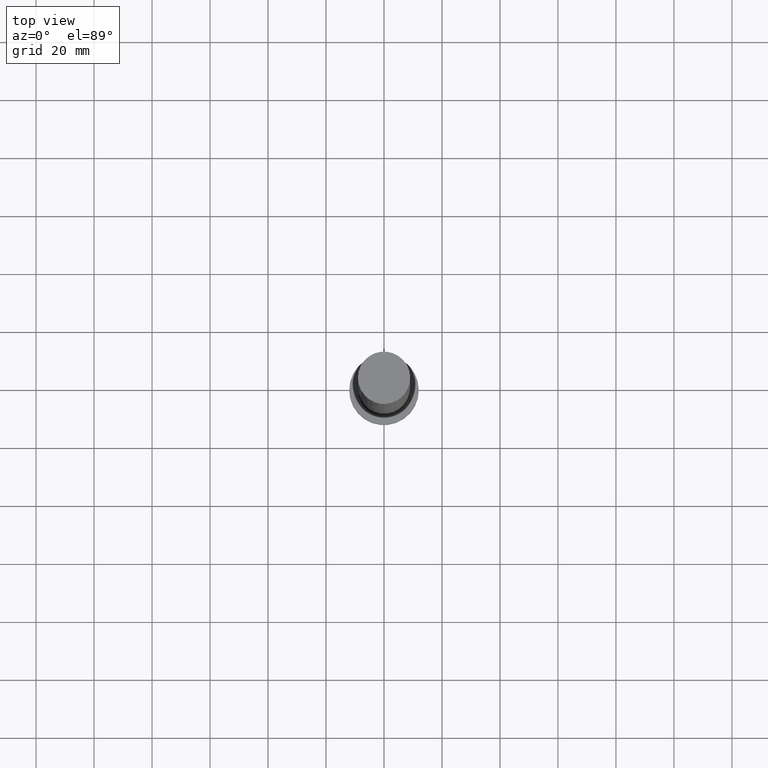
[diagram: clean part render]
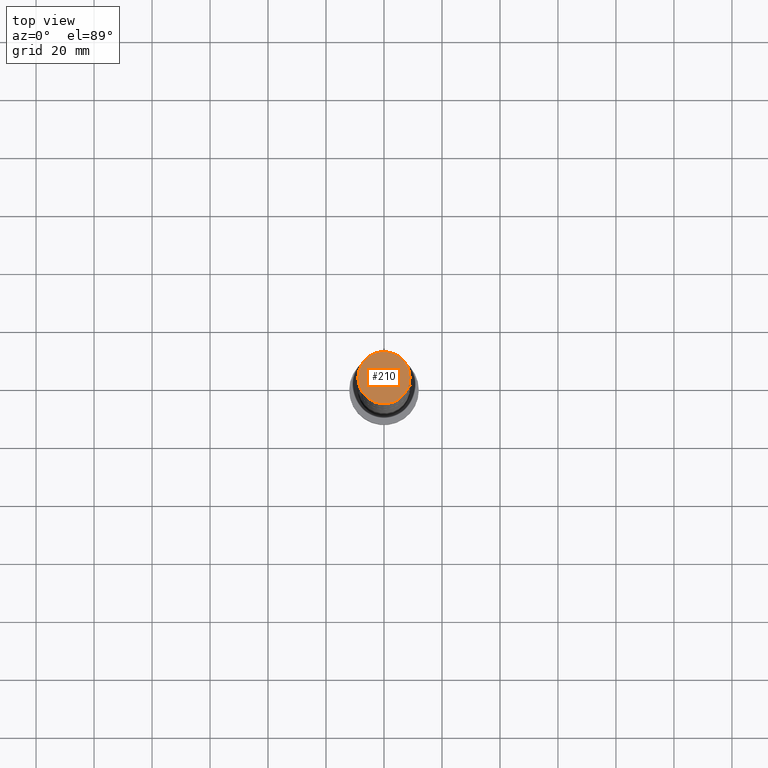
[diagram: same view with one face highlighted and labeled with its STEP entity id]
A machine part, top view. The second image highlights one B-rep face of the part: STEP entity #210.
In plain terms, the highlighted planar face has unit normal (0, 0, 1).
Its self-contained STEP definition (entity closure, byte-faithful):
#32 = DIRECTION ( 'NONE',  ( 0.000000000000000000, 0.000000000000000000, 1.000000000000000000 ) ) ;
#149 = AXIS2_PLACEMENT_3D ( 'NONE', #1519, #696, #1276 ) ;
#173 = DIRECTION ( 'NONE',  ( 0.000000000000000000, 0.000000000000000000, 1.000000000000000000 ) ) ;
#210 = ADVANCED_FACE ( 'NONE', ( #462 ), #1430, .T. ) ;
#222 = CARTESIAN_POINT ( 'NONE',  ( -9.000000000000000000, 0.000000000000000000, 250.0000000000000000 ) ) ;
#292 = DIRECTION ( 'NONE',  ( 1.000000000000000000, 0.000000000000000000, -0.000000000000000000 ) ) ;
#299 = CARTESIAN_POINT ( 'NONE',  ( 9.000000000000000000, 1.102182119232617714E-15, 250.0000000000000000 ) ) ;
#301 = CARTESIAN_POINT ( 'NONE',  ( 0.000000000000000000, 0.000000000000000000, 250.0000000000000000 ) ) ;
#424 = ORIENTED_EDGE ( 'NONE', *, *, #644, .T. ) ;
#441 = EDGE_CURVE ( 'NONE', #1125, #706, #909, .T. ) ;
#462 = FACE_OUTER_BOUND ( 'NONE', #686, .T. ) ;
#617 = DIRECTION ( 'NONE',  ( 1.000000000000000000, 0.000000000000000000, 0.000000000000000000 ) ) ;
#644 = EDGE_CURVE ( 'NONE', #706, #1125, #1094, .T. ) ;
#686 = EDGE_LOOP ( 'NONE', ( #424, #1440 ) ) ;
#696 = DIRECTION ( 'NONE',  ( 0.000000000000000000, 0.000000000000000000, 1.000000000000000000 ) ) ;
#706 = VERTEX_POINT ( 'NONE', #222 ) ;
#909 = CIRCLE ( 'NONE', #1629, 9.000000000000000000 ) ;
#1094 = CIRCLE ( 'NONE', #149, 9.000000000000000000 ) ;
#1125 = VERTEX_POINT ( 'NONE', #299 ) ;
#1276 = DIRECTION ( 'NONE',  ( 1.000000000000000000, 0.000000000000000000, 0.000000000000000000 ) ) ;
#1359 = CARTESIAN_POINT ( 'NONE',  ( 0.000000000000000000, 0.000000000000000000, 250.0000000000000000 ) ) ;
#1430 = PLANE ( 'NONE',  #1709 ) ;
#1440 = ORIENTED_EDGE ( 'NONE', *, *, #441, .T. ) ;
#1519 = CARTESIAN_POINT ( 'NONE',  ( 0.000000000000000000, 0.000000000000000000, 250.0000000000000000 ) ) ;
#1629 = AXIS2_PLACEMENT_3D ( 'NONE', #1359, #173, #617 ) ;
#1709 = AXIS2_PLACEMENT_3D ( 'NONE', #301, #32, #292 ) ;